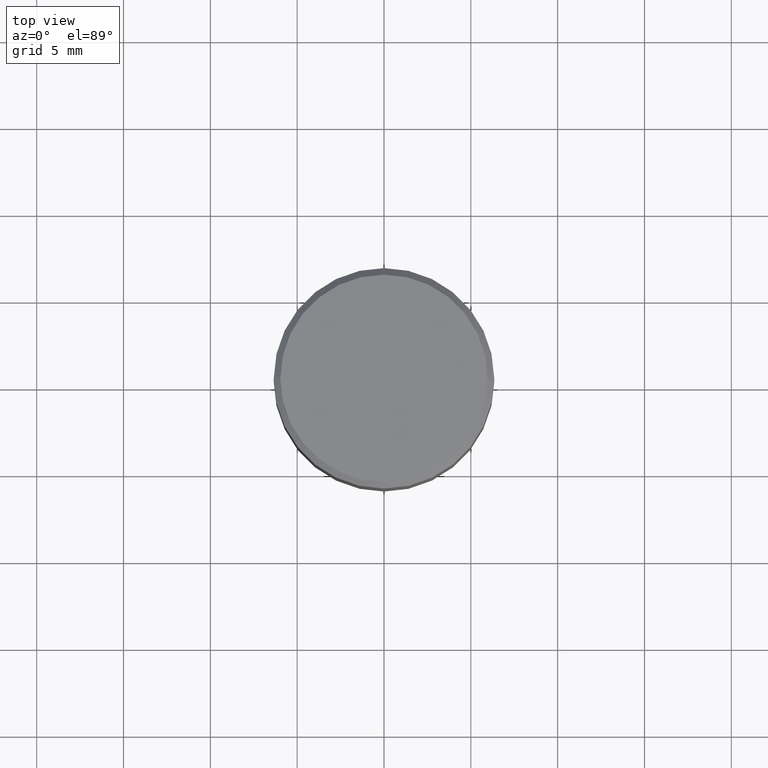
[diagram: clean part render]
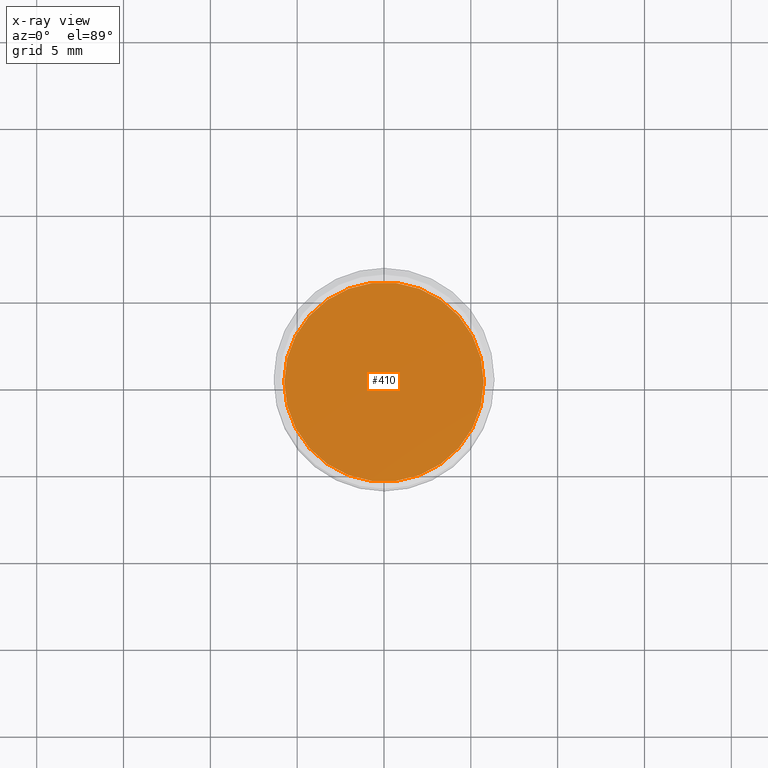
[diagram: x-ray — body ghosted, one internal face saturated and labeled with its STEP entity id]
A machine part, top view, then the same camera in x-ray: the body is ghosted and one INTERNAL B-rep face — a face not visible from any outside direction — is saturated and labeled: STEP entity #410.
In plain terms, the highlighted planar face has unit normal (-0, 0, 1).
Its self-contained STEP definition (entity closure, byte-faithful):
#13 = EDGE_CURVE ( 'NONE', #437, #183, #339, .T. ) ;
#44 = CARTESIAN_POINT ( 'NONE',  ( 0.2260500000000000009, -3.324239382712553708E-15, -0.5000000000000001110 ) ) ;
#51 = ORIENTED_EDGE ( 'NONE', *, *, #13, .F. ) ;
#60 = FACE_OUTER_BOUND ( 'NONE', #143, .T. ) ;
#67 = AXIS2_PLACEMENT_3D ( 'NONE', #213, #208, #354 ) ;
#90 = CARTESIAN_POINT ( 'NONE',  ( -0.2260500000000000009, -1.369095880617559516E-16, -0.5000000000000001110 ) ) ;
#113 = CARTESIAN_POINT ( 'NONE',  ( 1.222734403092568719E-29, -1.745740669421573186E-15, -0.5000000000000001110 ) ) ;
#135 = EDGE_CURVE ( 'NONE', #183, #437, #450, .T. ) ;
#138 = CARTESIAN_POINT ( 'NONE',  ( 1.222734403092568719E-29, -1.745740669421573186E-15, -0.5000000000000001110 ) ) ;
#143 = EDGE_LOOP ( 'NONE', ( #178, #51 ) ) ;
#173 = PLANE ( 'NONE',  #67 ) ;
#178 = ORIENTED_EDGE ( 'NONE', *, *, #135, .F. ) ;
#183 = VERTEX_POINT ( 'NONE', #44 ) ;
#188 = DIRECTION ( 'NONE',  ( -2.445468806185136597E-29, 3.491481338843145583E-15, 1.000000000000000000 ) ) ;
#208 = DIRECTION ( 'NONE',  ( -2.438088387897960049E-29, 3.491481338843145188E-15, 1.000000000000000000 ) ) ;
#213 = CARTESIAN_POINT ( 'NONE',  ( 1.222734403092568719E-29, -1.745740669421573186E-15, -0.5000000000000001110 ) ) ;
#264 = DIRECTION ( 'NONE',  ( -2.445468806185136597E-29, 3.491481338843145583E-15, 1.000000000000000000 ) ) ;
#285 = DIRECTION ( 'NONE',  ( 1.000000000000000000, -6.982962677686266711E-15, 0.000000000000000000 ) ) ;
#302 = AXIS2_PLACEMENT_3D ( 'NONE', #113, #264, #305 ) ;
#305 = DIRECTION ( 'NONE',  ( 1.000000000000000000, -6.982962677686266711E-15, 0.000000000000000000 ) ) ;
#339 = CIRCLE ( 'NONE', #436, 0.2260500000000000009 ) ;
#354 = DIRECTION ( 'NONE',  ( 1.000000000000000000, -6.982962677686265922E-15, 4.876176775795935793E-29 ) ) ;
#410 = ADVANCED_FACE ( 'NONE', ( #60 ), #173, .F. ) ;
#436 = AXIS2_PLACEMENT_3D ( 'NONE', #138, #188, #285 ) ;
#437 = VERTEX_POINT ( 'NONE', #90 ) ;
#450 = CIRCLE ( 'NONE', #302, 0.2260500000000000009 ) ;